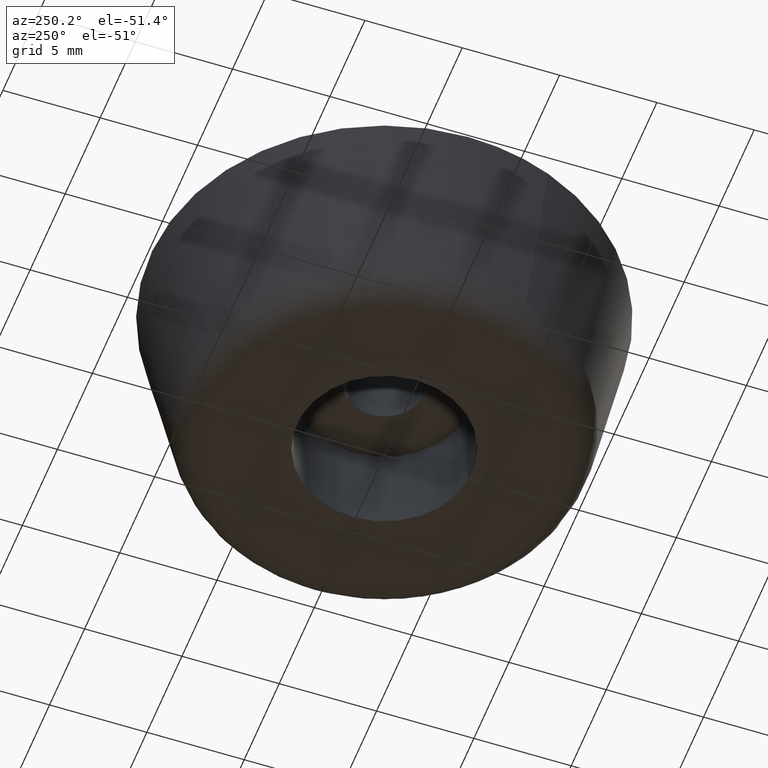
[diagram: clean part render]
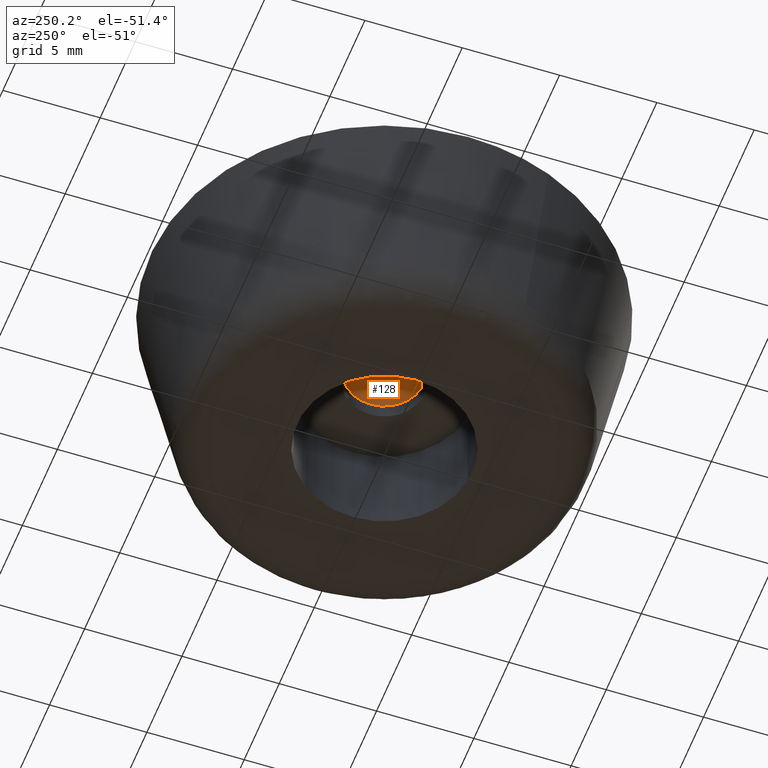
[diagram: same view with one face highlighted and labeled with its STEP entity id]
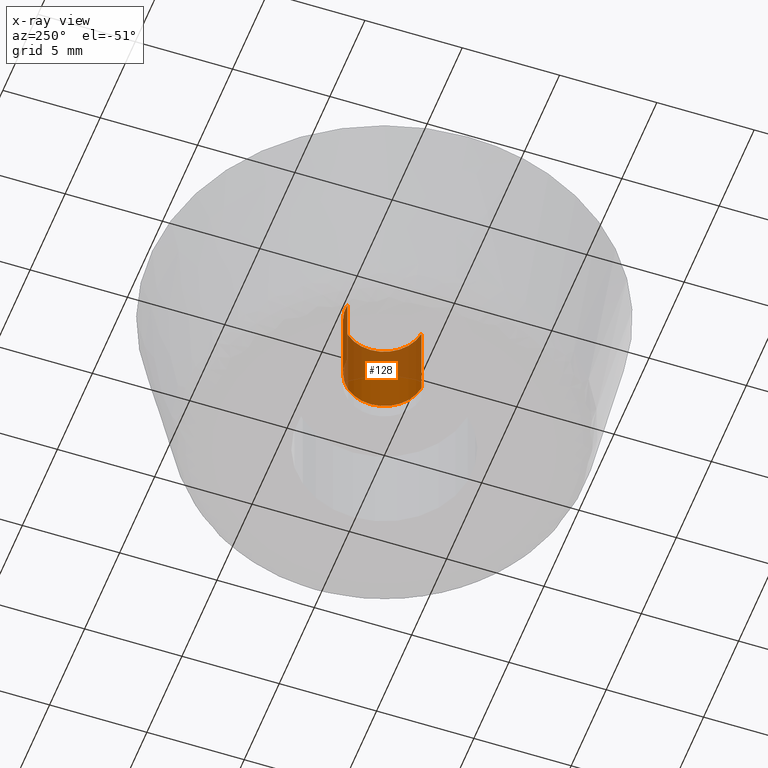
[diagram: x-ray of the same camera — body ghosted, the highlighted face saturated]
A machine part, auxiliary view. The second image highlights one B-rep face of the part: STEP entity #128.
The next image is the same camera in x-ray: the body ghosted, the highlighted face saturated — about 61% of this face is hidden behind the body in this view.
In plain terms, the highlighted cylindrical surface (partial cylindrical patch) has radius 2 mm, axis along (-0, -0, -1).
Its self-contained STEP definition (entity closure, byte-faithful):
#128=ADVANCED_FACE('',(#299),#298,.F.);
#298=CYLINDRICAL_SURFACE('',#481,2.00000000000E+000);
#299=FACE_OUTER_BOUND('',#482,.T.);
#478=CARTESIAN_POINT('',(2.94107710977E-017,1.41420366015E-017,7.90000009537E+000));
#479=DIRECTION('',(-2.76929706381E-014,-2.84451388411E-015,-1.00000000000E+000));
#480=DIRECTION('',(-1.18034234657E-001,9.93009526364E-001,4.44089209851E-016));
#481=AXIS2_PLACEMENT_3D('',#478,#479,#480);
#482=EDGE_LOOP('',(#572,#573,#574,#575));
#572=ORIENTED_EDGE('',*,*,#610,.F.);
#573=ORIENTED_EDGE('',*,*,#629,.T.);
#574=ORIENTED_EDGE('',*,*,#618,.T.);
#575=ORIENTED_EDGE('',*,*,#630,.F.);
#610=EDGE_CURVE('',#777,#776,#784,.T.);
#618=EDGE_CURVE('',#833,#832,#840,.T.);
#629=EDGE_CURVE('',#777,#833,#910,.T.);
#630=EDGE_CURVE('',#776,#832,#916,.T.);
#776=VERTEX_POINT('',#1027);
#777=VERTEX_POINT('',#1028);
#784=CIRCLE('',#1036,2.00000000000E+000);
#832=VERTEX_POINT('',#1067);
#833=VERTEX_POINT('',#1068);
#840=CIRCLE('',#1076,2.00000000000E+000);
#910=(BOUNDED_CURVE() B_SPLINE_CURVE(1,(#1113,#1114),.UNSPECIFIED.,.F.,.F.) B_SPLINE_CURVE_WITH_KNOTS((2,2),(8.33333313467E-002,9.16666670832E-001),.UNSPECIFIED.) CURVE() GEOMETRIC_REPRESENTATION_ITEM() RATIONAL_B_SPLINE_CURVE((1.00000000000E+000,1.00000000000E+000)) REPRESENTATION_ITEM('') );
#916=(BOUNDED_CURVE() B_SPLINE_CURVE(1,(#1115,#1116),.UNSPECIFIED.,.F.,.F.) B_SPLINE_CURVE_WITH_KNOTS((2,2),(8.33333333334E-002,9.16666666667E-001),.UNSPECIFIED.) CURVE() GEOMETRIC_REPRESENTATION_ITEM() RATIONAL_B_SPLINE_CURVE((7.50000000000E-001,7.50000000000E-001)) REPRESENTATION_ITEM('') );
#1027=CARTESIAN_POINT('',(2.36067743038E-001,-1.98601913906E+000,1.00000000000E+001));
#1028=CARTESIAN_POINT('',(-2.36068469314E-001,1.98601905273E+000,1.00000000000E+001));
#1033=CARTESIAN_POINT('',(-5.55111512313E-016,-3.33066907388E-016,1.00000000000E+001));
#1034=DIRECTION('',(9.76996261670E-015,-5.77861428570E-016,-1.00000000000E+000));
#1035=DIRECTION('',(1.18033871519E-001,-9.93009569528E-001,1.72700844067E-015));
#1036=AXIS2_PLACEMENT_3D('',#1033,#1034,#1035);
#1067=CARTESIAN_POINT('',(2.36411791321E-001,-1.98597821361E+000,5.80000000000E+000));
#1068=CARTESIAN_POINT('',(-2.36411791321E-001,1.98597821361E+000,5.80000000000E+000));
#1073=CARTESIAN_POINT('',(7.77156117238E-016,3.33066907388E-016,5.80000000000E+000));
#1074=DIRECTION('',(1.50938211948E-015,-2.05666480642E-015,-1.00000000000E+000));
#1075=DIRECTION('',(-1.18205895660E-001,9.92989106804E-001,-2.22066361444E-015));
#1076=AXIS2_PLACEMENT_3D('',#1073,#1074,#1075);
#1113=CARTESIAN_POINT('',(-2.36068469314E-001,1.98601905273E+000,1.00000000100E+001));
#1114=CARTESIAN_POINT('',(-2.36068469314E-001,1.98601905273E+000,5.79999997901E+000));
#1115=CARTESIAN_POINT('',(2.36068469314E-001,-1.98601905273E+000,1.00000000000E+001));
#1116=CARTESIAN_POINT('',(2.36068469314E-001,-1.98601905273E+000,5.80000000000E+000));